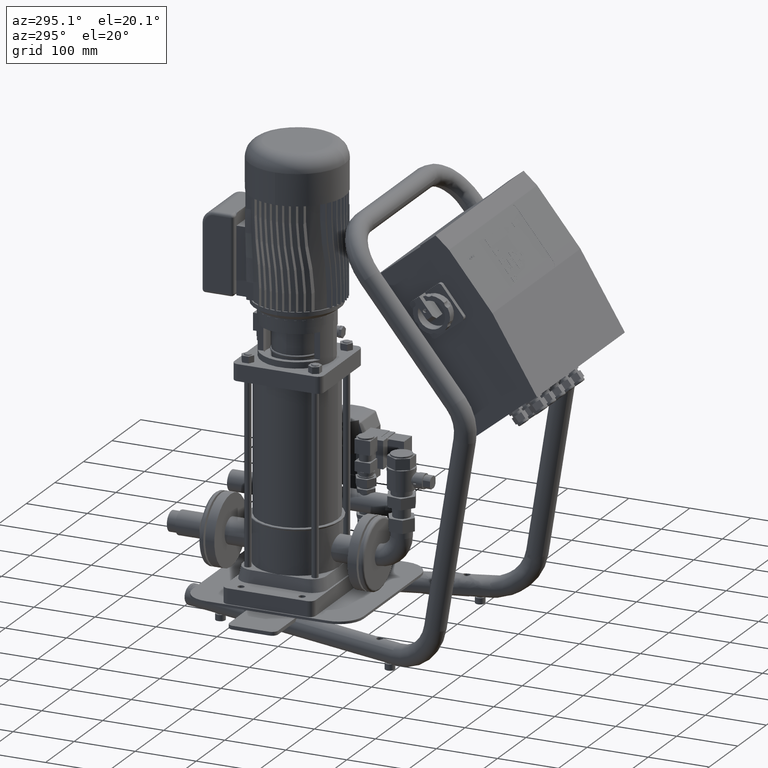
[diagram: clean part render]
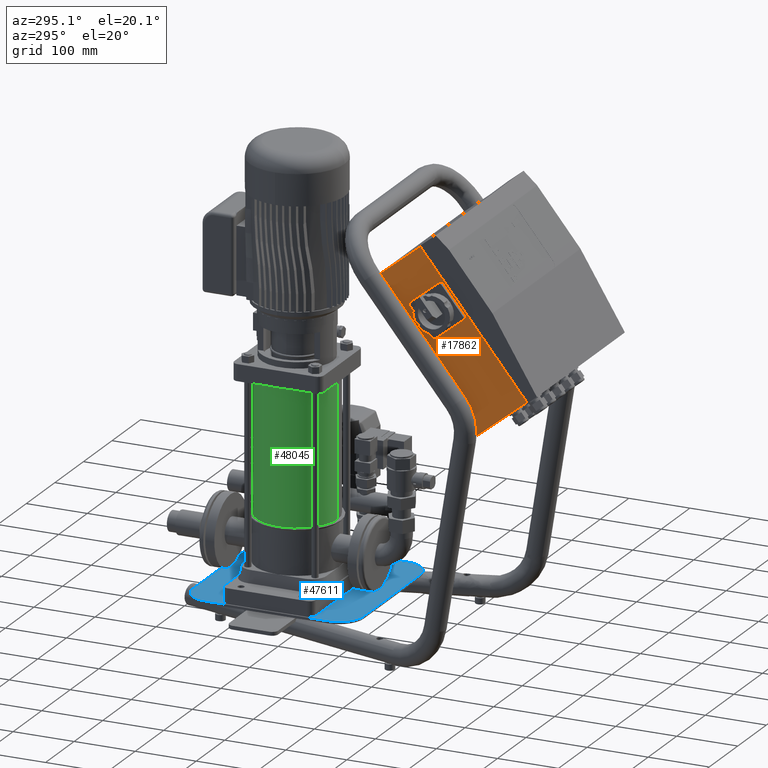
[diagram: same view with three faces highlighted in distinct colors, each labeled with its STEP entity id]
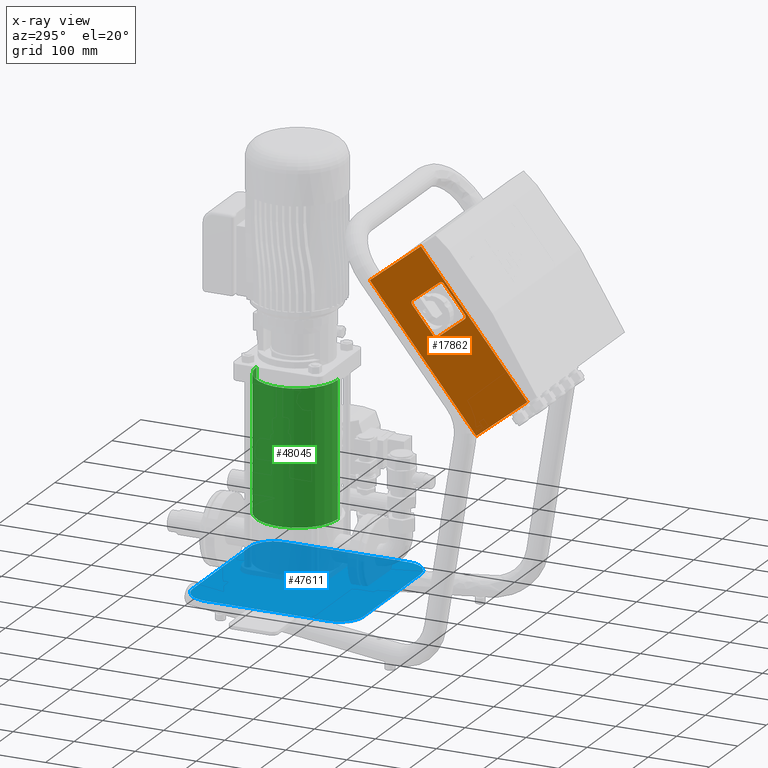
[diagram: x-ray of the same camera — body ghosted, the three highlighted faces saturated]
A machine part, auxiliary view with three faces highlighted in distinct colors.
The next image is the same camera in x-ray (body ghosted, the three faces saturated) — at least one of them is partly hidden behind the body in this view.
Their STEP definitions:

[orange] entity #17862 — the highlighted planar face has unit normal (-1, 0, 0).
#7968=CARTESIAN_POINT('',(-152.500000000000000,-288.889131800356270,620.797861396815850));
#7969=VERTEX_POINT('',#7968);
#7976=CARTESIAN_POINT('',(-152.500000000000000,-245.093513504628450,585.898809574527260));
#7977=VERTEX_POINT('',#7976);
#7978=CARTESIAN_POINT('',(-152.500000000000000,-245.093513504628450,585.898809574527260));
#7979=DIRECTION('',(0.0,-0.782064612423727,0.623197353969452));
#7980=VECTOR('',#7979,55.999999999998870);
#7981=LINE('',#7978,#7980);
#7982=EDGE_CURVE('',#7977,#7969,#7981,.T.);
#7999=CARTESIAN_POINT('',(-152.500000000000000,-295.915441632323110,620.003525104544680));
#8000=VERTEX_POINT('',#7999);
#8007=CARTESIAN_POINT('',(-152.499999999999940,-292.005118570204790,616.887538334697410));
#8008=DIRECTION('',(1.000000000000000,9.378475E-018,-7.473348E-018));
#8009=DIRECTION('',(1.199194E-017,-0.782064612423720,0.623197353969460));
#8010=AXIS2_PLACEMENT_3D('',#8007,#8008,#8009);
#8011=CIRCLE('',#8010,5.000000000000037);
#8012=EDGE_CURVE('',#7969,#8000,#8011,.T.);
#8024=CARTESIAN_POINT('',(-152.500000000000000,-330.814493454612370,576.207906808816690));
#8025=VERTEX_POINT('',#8024);
#8032=CARTESIAN_POINT('',(-152.500000000000000,-295.915441632323110,620.003525104544680));
#8033=DIRECTION('',(0.0,-0.623197353969458,-0.782064612423722));
#8034=VECTOR('',#8033,55.999999999999432);
#8035=LINE('',#8032,#8034);
#8036=EDGE_CURVE('',#8000,#8025,#8035,.T.);
#8048=CARTESIAN_POINT('',(-152.500000000000000,-330.020157162340870,569.181596976850300));
#8049=VERTEX_POINT('',#8048);
#8056=CARTESIAN_POINT('',(-152.499999999999890,-326.904170392493710,573.091920038968620));
#8057=DIRECTION('',(1.000000000000000,2.499492E-016,3.136670E-016));
#8058=DIRECTION('',(4.010755E-016,-0.623197353969451,-0.782064612423727));
#8059=AXIS2_PLACEMENT_3D('',#8056,#8057,#8058);
#8060=CIRCLE('',#8059,5.000000000000019);
#8061=EDGE_CURVE('',#8025,#8049,#8060,.T.);
#8073=CARTESIAN_POINT('',(-152.499999999999970,-286.224538866612420,534.282545154560690));
#8074=VERTEX_POINT('',#8073);
#8081=CARTESIAN_POINT('',(-152.500000000000000,-330.020157162340870,569.181596976850300));
#8082=DIRECTION('',(5.075305E-016,0.782064612423722,-0.623197353969457));
#8083=VECTOR('',#8082,55.999999999999993);
#8084=LINE('',#8081,#8083);
#8085=EDGE_CURVE('',#8049,#8074,#8084,.T.);
#8097=CARTESIAN_POINT('',(-152.499999999999970,-279.198229034646490,535.076881446832200));
#8098=VERTEX_POINT('',#8097);
#8105=CARTESIAN_POINT('',(-152.499999999999860,-283.108552096764920,538.192868216679700));
#8106=DIRECTION('',(1.000000000000000,9.378475E-018,-7.473348E-018));
#8107=DIRECTION('',(-1.199194E-017,0.782064612423727,-0.623197353969451));
#8108=AXIS2_PLACEMENT_3D('',#8105,#8106,#8107);
#8109=CIRCLE('',#8108,5.000000000000019);
#8110=EDGE_CURVE('',#8074,#8098,#8109,.T.);
#8122=CARTESIAN_POINT('',(-152.499999999999970,-244.299177212356450,578.872499742561330));
#8123=VERTEX_POINT('',#8122);
#8130=CARTESIAN_POINT('',(-152.499999999999970,-279.198229034646490,535.076881446832200));
#8131=DIRECTION('',(0.0,0.623197353969456,0.782064612423723));
#8132=VECTOR('',#8131,56.000000000000796);
#8133=LINE('',#8130,#8132);
#8134=EDGE_CURVE('',#8098,#8123,#8133,.T.);
#8147=CARTESIAN_POINT('',(-152.499999999999910,-248.209500274475540,581.988486512408140));
#8148=DIRECTION('',(1.000000000000000,2.499492E-016,3.136670E-016));
#8149=DIRECTION('',(-4.010755E-016,0.623197353969449,0.782064612423729));
#8150=AXIS2_PLACEMENT_3D('',#8147,#8148,#8149);
#8151=CIRCLE('',#8150,5.000000000000038);
#8152=EDGE_CURVE('',#8123,#7977,#8151,.T.);
#17613=CARTESIAN_POINT('',(-152.500000000000000,-258.535872074003810,673.330514327964920));
#17614=VERTEX_POINT('',#17613);
#17621=CARTESIAN_POINT('',(-152.499999999999830,-433.031131185449790,454.352422849320650));
#17622=VERTEX_POINT('',#17621);
#17623=CARTESIAN_POINT('',(-152.499999999999830,-433.031131185449790,454.352422849320650));
#17624=DIRECTION('',(-6.090366E-016,0.623197353969449,0.782064612423729));
#17625=VECTOR('',#17624,280.000000000000280);
#17626=LINE('',#17623,#17625);
#17627=EDGE_CURVE('',#17622,#17614,#17626,.T.);
#17723=CARTESIAN_POINT('',(-152.499999999999830,-349.350217656110090,387.670305974589610));
#17724=VERTEX_POINT('',#17723);
#17725=CARTESIAN_POINT('',(-152.499999999999830,-349.350217656110090,387.670305974589610));
#17726=DIRECTION('',(0.0,-0.782064612423731,0.623197353969446));
#17727=VECTOR('',#17726,107.000000000000550);
#17728=LINE('',#17725,#17727);
#17729=EDGE_CURVE('',#17724,#17622,#17728,.T.);
#17829=CARTESIAN_POINT('',(-152.499999999999830,-349.350217656110090,387.670305974589610));
#17830=DIRECTION('',(-1.0,0.0,0.0));
#17831=DIRECTION('',(0.0,-0.782064612423729,0.623197353969449));
#17832=AXIS2_PLACEMENT_3D('',#17829,#17830,#17831);
#17833=PLANE('',#17832);
#17834=ORIENTED_EDGE('',*,*,#17627,.T.);
#17835=CARTESIAN_POINT('',(-152.500000000000030,-174.854958544665610,606.648397453234000));
#17836=VERTEX_POINT('',#17835);
#17837=CARTESIAN_POINT('',(-152.500000000000030,-174.854958544665610,606.648397453234000));
#17838=DIRECTION('',(2.656235E-016,-0.782064612423727,0.623197353969452));
#17839=VECTOR('',#17838,106.999999999999300);
#17840=LINE('',#17837,#17839);
#17841=EDGE_CURVE('',#17836,#17614,#17840,.T.);
#17842=ORIENTED_EDGE('',*,*,#17841,.F.);
#17843=CARTESIAN_POINT('',(-152.499999999999830,-349.350217656110090,387.670305974589610));
#17844=DIRECTION('',(-7.105427E-016,0.623197353969446,0.782064612423732));
#17845=VECTOR('',#17844,279.999999999999430);
#17846=LINE('',#17843,#17845);
#17847=EDGE_CURVE('',#17724,#17836,#17846,.T.);
#17848=ORIENTED_EDGE('',*,*,#17847,.F.);
#17849=ORIENTED_EDGE('',*,*,#17729,.T.);
#17850=EDGE_LOOP('',(#17834,#17842,#17848,#17849));
#17851=FACE_OUTER_BOUND('',#17850,.T.);
#17852=ORIENTED_EDGE('',*,*,#7982,.T.);
#17853=ORIENTED_EDGE('',*,*,#8012,.T.);
#17854=ORIENTED_EDGE('',*,*,#8036,.T.);
#17855=ORIENTED_EDGE('',*,*,#8061,.T.);
#17856=ORIENTED_EDGE('',*,*,#8085,.T.);
#17857=ORIENTED_EDGE('',*,*,#8110,.T.);
#17858=ORIENTED_EDGE('',*,*,#8134,.T.);
#17859=ORIENTED_EDGE('',*,*,#8152,.T.);
#17860=EDGE_LOOP('',(#17852,#17853,#17854,#17855,#17856,#17857,#17858,#17859));
#17861=FACE_BOUND('',#17860,.T.);
#17862=ADVANCED_FACE('',(#17851,#17861),#17833,.T.);

[blue] entity #47611 — the highlighted planar face has unit normal (0, 0, 1).
#47329=CARTESIAN_POINT('',(99.999999999999972,-140.0,52.999999999999865));
#47330=VERTEX_POINT('',#47329);
#47331=CARTESIAN_POINT('',(-100.000000000000030,-140.0,52.999999999999865));
#47332=VERTEX_POINT('',#47331);
#47333=CARTESIAN_POINT('',(99.999999999999972,-140.0,52.999999999999865));
#47334=DIRECTION('',(-1.0,0.0,0.0));
#47335=VECTOR('',#47334,200.0);
#47336=LINE('',#47333,#47335);
#47337=EDGE_CURVE('',#47330,#47332,#47336,.T.);
#47369=CARTESIAN_POINT('',(-140.0,-99.999999999999972,52.999999999999908));
#47370=VERTEX_POINT('',#47369);
#47371=CARTESIAN_POINT('',(-100.000000000000010,-100.0,52.999999999999908));
#47372=DIRECTION('',(0.0,0.0,-1.0));
#47373=DIRECTION('',(-1.0,0.0,0.0));
#47374=AXIS2_PLACEMENT_3D('',#47371,#47372,#47373);
#47375=CIRCLE('',#47374,40.000000000000014);
#47376=EDGE_CURVE('',#47332,#47370,#47375,.T.);
#47402=CARTESIAN_POINT('',(-140.0,100.000000000000030,53.000000000000092));
#47403=VERTEX_POINT('',#47402);
#47404=CARTESIAN_POINT('',(-140.0,-99.999999999999972,52.999999999999908));
#47405=DIRECTION('',(0.0,1.0,0.0));
#47406=VECTOR('',#47405,200.0);
#47407=LINE('',#47404,#47406);
#47408=EDGE_CURVE('',#47370,#47403,#47407,.T.);
#47433=CARTESIAN_POINT('',(-99.999999999999972,140.000000000000030,53.000000000000121));
#47434=VERTEX_POINT('',#47433);
#47435=CARTESIAN_POINT('',(-99.999999999999986,100.0,53.000000000000092));
#47436=DIRECTION('',(0.0,0.0,-1.0));
#47437=DIRECTION('',(0.0,1.0,0.0));
#47438=AXIS2_PLACEMENT_3D('',#47435,#47436,#47437);
#47439=CIRCLE('',#47438,40.000000000000014);
#47440=EDGE_CURVE('',#47403,#47434,#47439,.T.);
#47466=CARTESIAN_POINT('',(100.0,140.0,53.000000000000121));
#47467=VERTEX_POINT('',#47466);
#47468=CARTESIAN_POINT('',(-99.999999999999972,140.000000000000030,53.000000000000121));
#47469=DIRECTION('',(1.0,0.0,0.0));
#47470=VECTOR('',#47469,199.999999999999970);
#47471=LINE('',#47468,#47470);
#47472=EDGE_CURVE('',#47434,#47467,#47471,.T.);
#47497=CARTESIAN_POINT('',(140.0,99.999999999999972,53.000000000000092));
#47498=VERTEX_POINT('',#47497);
#47499=CARTESIAN_POINT('',(100.0,99.999999999999972,53.000000000000092));
#47500=DIRECTION('',(0.0,0.0,-1.0));
#47501=DIRECTION('',(1.0,0.0,0.0));
#47502=AXIS2_PLACEMENT_3D('',#47499,#47500,#47501);
#47503=CIRCLE('',#47502,40.0);
#47504=EDGE_CURVE('',#47467,#47498,#47503,.T.);
#47530=CARTESIAN_POINT('',(140.0,-100.000000000000010,52.999999999999908));
#47531=VERTEX_POINT('',#47530);
#47532=CARTESIAN_POINT('',(140.0,99.999999999999972,53.000000000000092));
#47533=DIRECTION('',(0.0,-1.0,0.0));
#47534=VECTOR('',#47533,200.0);
#47535=LINE('',#47532,#47534);
#47536=EDGE_CURVE('',#47498,#47531,#47535,.T.);
#47561=CARTESIAN_POINT('',(100.000000000000030,-100.000000000000010,52.999999999999908));
#47562=DIRECTION('',(0.0,0.0,-1.0));
#47563=DIRECTION('',(0.0,-1.0,0.0));
#47564=AXIS2_PLACEMENT_3D('',#47561,#47562,#47563);
#47565=CIRCLE('',#47564,40.0);
#47566=EDGE_CURVE('',#47531,#47330,#47565,.T.);
#47596=CARTESIAN_POINT('',(-1.421085E-014,1.236603E-014,52.999999999999993));
#47597=DIRECTION('',(0.0,0.0,1.0));
#47598=DIRECTION('',(-1.0,0.0,0.0));
#47599=AXIS2_PLACEMENT_3D('',#47596,#47597,#47598);
#47600=PLANE('',#47599);
#47601=ORIENTED_EDGE('',*,*,#47337,.F.);
#47602=ORIENTED_EDGE('',*,*,#47566,.F.);
#47603=ORIENTED_EDGE('',*,*,#47536,.F.);
#47604=ORIENTED_EDGE('',*,*,#47504,.F.);
#47605=ORIENTED_EDGE('',*,*,#47472,.F.);
#47606=ORIENTED_EDGE('',*,*,#47440,.F.);
#47607=ORIENTED_EDGE('',*,*,#47408,.F.);
#47608=ORIENTED_EDGE('',*,*,#47376,.F.);
#47609=EDGE_LOOP('',(#47601,#47602,#47603,#47604,#47605,#47606,#47607,#47608));
#47610=FACE_OUTER_BOUND('',#47609,.T.);
#47611=ADVANCED_FACE('',(#47610),#47600,.T.);

[green] entity #48045 — the highlighted cylindrical surface (partial cylindrical patch) has radius 66.5 mm, axis along (-0, -0, 1).
#47965=CARTESIAN_POINT('',(-32.999999999999986,66.499999999999957,393.0));
#47966=VERTEX_POINT('',#47965);
#47967=CARTESIAN_POINT('',(-32.999999999999986,66.500000000000000,173.0));
#47968=VERTEX_POINT('',#47967);
#47969=CARTESIAN_POINT('',(-32.999999999999986,66.499999999999957,393.0));
#47970=DIRECTION('',(0.0,0.0,-1.0));
#47971=VECTOR('',#47970,220.0);
#47972=LINE('',#47969,#47971);
#47973=EDGE_CURVE('',#47966,#47968,#47972,.T.);
#47975=CARTESIAN_POINT('',(-33.0,-66.500000000000057,393.0));
#47976=VERTEX_POINT('',#47975);
#47984=CARTESIAN_POINT('',(-33.0,-66.500000000000014,172.999999999999970));
#47985=VERTEX_POINT('',#47984);
#47986=CARTESIAN_POINT('',(-33.0,-66.500000000000057,393.0));
#47987=DIRECTION('',(0.0,0.0,-1.0));
#47988=VECTOR('',#47987,220.000000000000030);
#47989=LINE('',#47986,#47988);
#47990=EDGE_CURVE('',#47976,#47985,#47989,.T.);
#48007=CARTESIAN_POINT('',(-33.0,-5.114924E-014,393.0));
#48008=DIRECTION('',(0.0,0.0,-1.0));
#48009=DIRECTION('',(0.0,1.0,0.0));
#48010=AXIS2_PLACEMENT_3D('',#48007,#48008,#48009);
#48011=CIRCLE('',#48010,66.500000000000000);
#48012=EDGE_CURVE('',#47976,#47966,#48011,.T.);
#48023=CARTESIAN_POINT('',(-33.0,-6.740315E-015,173.0));
#48024=DIRECTION('',(0.0,0.0,-1.0));
#48025=DIRECTION('',(0.0,1.0,0.0));
#48026=AXIS2_PLACEMENT_3D('',#48023,#48024,#48025);
#48027=CIRCLE('',#48026,66.500000000000000);
#48028=EDGE_CURVE('',#47985,#47968,#48027,.T.);
#48034=CARTESIAN_POINT('',(-33.0,-6.740315E-015,173.0));
#48035=DIRECTION('',(-3.708085E-032,-2.018587E-016,1.0));
#48036=DIRECTION('',(0.0,1.0,0.0));
#48037=AXIS2_PLACEMENT_3D('',#48034,#48035,#48036);
#48038=CYLINDRICAL_SURFACE('',#48037,66.500000000000000);
#48039=ORIENTED_EDGE('',*,*,#47973,.T.);
#48040=ORIENTED_EDGE('',*,*,#48028,.F.);
#48041=ORIENTED_EDGE('',*,*,#47990,.F.);
#48042=ORIENTED_EDGE('',*,*,#48012,.T.);
#48043=EDGE_LOOP('',(#48039,#48040,#48041,#48042));
#48044=FACE_OUTER_BOUND('',#48043,.T.);
#48045=ADVANCED_FACE('',(#48044),#48038,.T.);